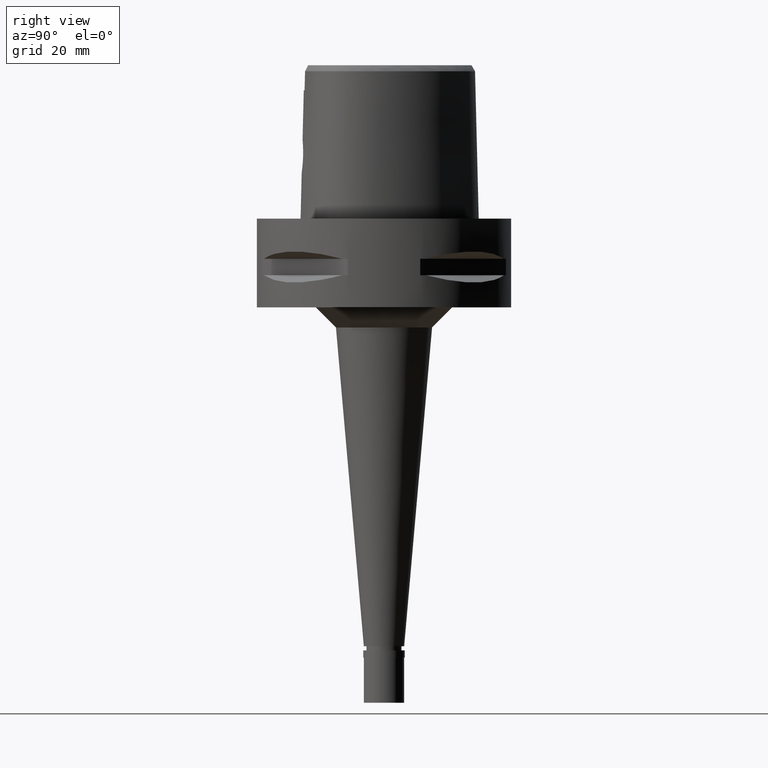
[diagram: clean part render]
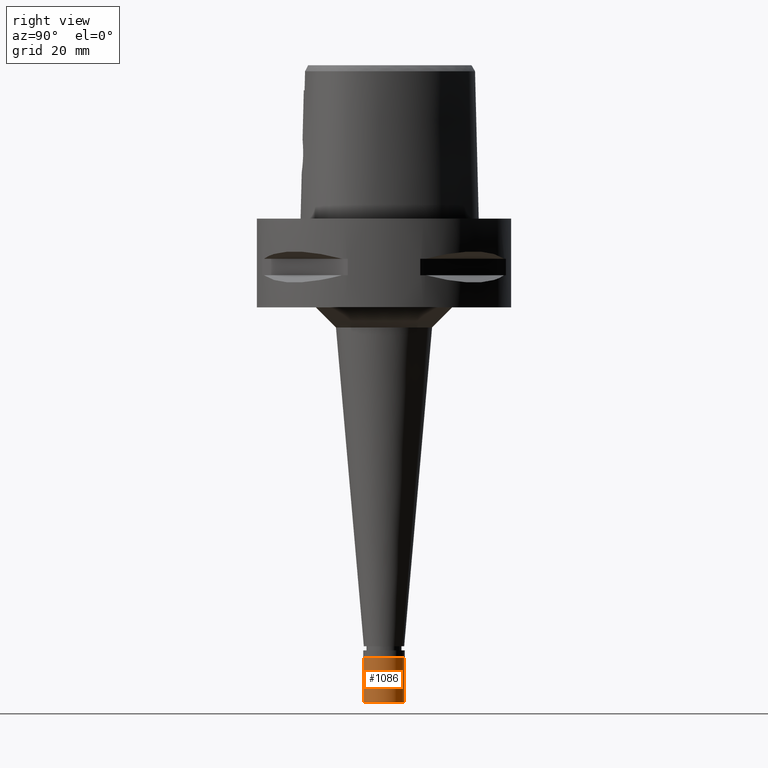
[diagram: same view with one face highlighted and labeled with its STEP entity id]
A machine part, right view. The second image highlights one B-rep face of the part: STEP entity #1086.
In plain terms, the highlighted cylindrical surface (edge-blend (fillet) strip) has radius 5 mm, axis along (0, 0, 1).
Its self-contained STEP definition (entity closure, byte-faithful):
#1 = EDGE_LOOP ( 'NONE', ( #2023, #174, #1211, #737 ) ) ;
#70 = AXIS2_PLACEMENT_3D ( 'NONE', #3952, #536, #86 ) ;
#86 = DIRECTION ( 'NONE',  ( 0.0000000000000000000, 1.000000000000000000, 0.0000000000000000000 ) ) ;
#89 = VERTEX_POINT ( 'NONE', #2260 ) ;
#174 = ORIENTED_EDGE ( 'NONE', *, *, #2159, .T. ) ;
#364 = DIRECTION ( 'NONE',  ( 0.0000000000000000000, 0.0000000000000000000, 1.000000000000000000 ) ) ;
#516 = LINE ( 'NONE', #2032, #1992 ) ;
#536 = DIRECTION ( 'NONE',  ( 0.0000000000000000000, 0.0000000000000000000, -1.000000000000000000 ) ) ;
#557 = VERTEX_POINT ( 'NONE', #4764 ) ;
#737 = ORIENTED_EDGE ( 'NONE', *, *, #1109, .F. ) ;
#887 = VECTOR ( 'NONE', #3269, 1000.000000000000000 ) ;
#935 = DIRECTION ( 'NONE',  ( 0.0000000000000000000, 1.000000000000000000, 0.0000000000000000000 ) ) ;
#1086 = ADVANCED_FACE ( 'NONE', ( #3510 ), #3931, .T. ) ;
#1109 = EDGE_CURVE ( 'NONE', #3110, #1224, #516, .T. ) ;
#1151 = CARTESIAN_POINT ( 'NONE',  ( 0.0000000000000000000, 5.000000000000000000, -1.800000000000000044 ) ) ;
#1205 = CIRCLE ( 'NONE', #3370, 5.000000000000000000 ) ;
#1211 = ORIENTED_EDGE ( 'NONE', *, *, #2548, .T. ) ;
#1224 = VERTEX_POINT ( 'NONE', #3834 ) ;
#1786 = CARTESIAN_POINT ( 'NONE',  ( 0.0000000000000000000, 0.0000000000000000000, -13.00000000000000000 ) ) ;
#1992 = VECTOR ( 'NONE', #2406, 1000.000000000000000 ) ;
#2023 = ORIENTED_EDGE ( 'NONE', *, *, #4760, .T. ) ;
#2032 = CARTESIAN_POINT ( 'NONE',  ( 0.0000000000000000000, 5.000000000000000000, -1.800000000000000044 ) ) ;
#2084 = CARTESIAN_POINT ( 'NONE',  ( 0.0000000000000000000, 0.0000000000000000000, -13.65000000000000036 ) ) ;
#2159 = EDGE_CURVE ( 'NONE', #557, #89, #3615, .T. ) ;
#2260 = CARTESIAN_POINT ( 'NONE',  ( 0.0000000000000000000, -5.000000000000000000, -13.00000000000000000 ) ) ;
#2406 = DIRECTION ( 'NONE',  ( 0.0000000000000000000, 0.0000000000000000000, -1.000000000000000000 ) ) ;
#2548 = EDGE_CURVE ( 'NONE', #89, #1224, #1205, .T. ) ;
#2918 = CARTESIAN_POINT ( 'NONE',  ( 0.0000000000000000000, -5.000000000000000000, -1.800000000000000044 ) ) ;
#3026 = CIRCLE ( 'NONE', #70, 5.000000000000000000 ) ;
#3110 = VERTEX_POINT ( 'NONE', #1151 ) ;
#3269 = DIRECTION ( 'NONE',  ( 0.0000000000000000000, 0.0000000000000000000, -1.000000000000000000 ) ) ;
#3370 = AXIS2_PLACEMENT_3D ( 'NONE', #1786, #364, #4542 ) ;
#3510 = FACE_OUTER_BOUND ( 'NONE', #1, .T. ) ;
#3581 = DIRECTION ( 'NONE',  ( 0.0000000000000000000, 0.0000000000000000000, 1.000000000000000000 ) ) ;
#3592 = AXIS2_PLACEMENT_3D ( 'NONE', #2084, #3581, #935 ) ;
#3615 = LINE ( 'NONE', #2918, #887 ) ;
#3834 = CARTESIAN_POINT ( 'NONE',  ( 0.0000000000000000000, 5.000000000000000000, -13.00000000000000000 ) ) ;
#3931 = CYLINDRICAL_SURFACE ( 'NONE', #3592, 5.000000000000000000 ) ;
#3952 = CARTESIAN_POINT ( 'NONE',  ( 0.0000000000000000000, 0.0000000000000000000, -1.800000000000000044 ) ) ;
#4542 = DIRECTION ( 'NONE',  ( 0.0000000000000000000, -1.000000000000000000, 0.0000000000000000000 ) ) ;
#4760 = EDGE_CURVE ( 'NONE', #3110, #557, #3026, .T. ) ;
#4764 = CARTESIAN_POINT ( 'NONE',  ( 0.0000000000000000000, -5.000000000000000000, -1.800000000000000044 ) ) ;